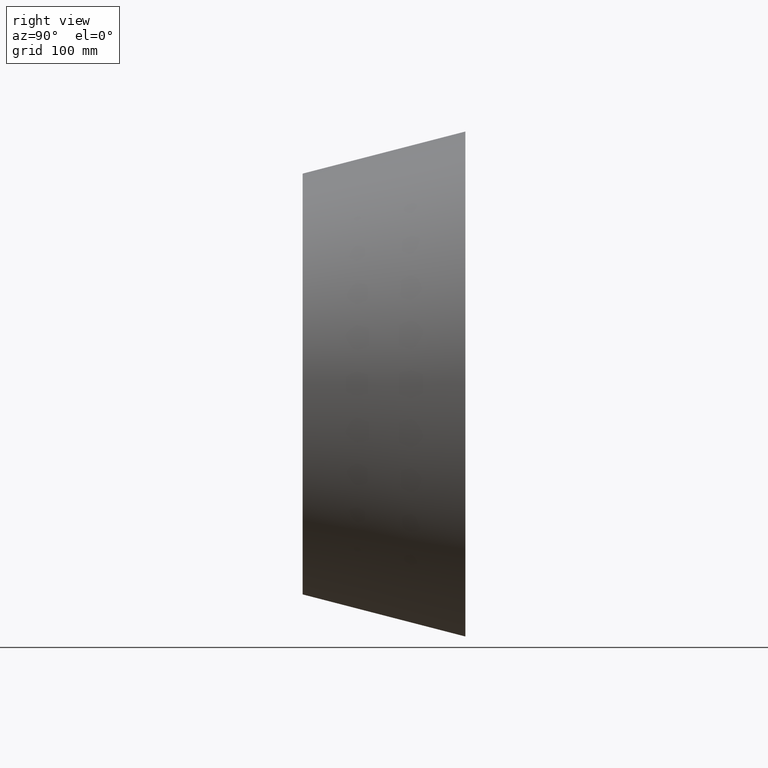
[diagram: clean part render]
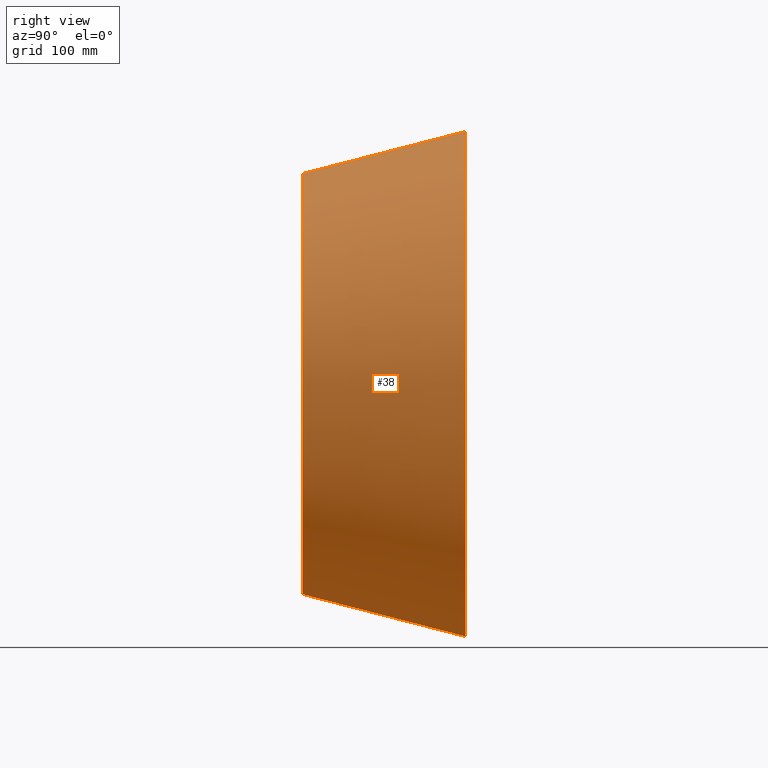
[diagram: same view with one face highlighted and labeled with its STEP entity id]
A machine part, right view. The second image highlights one B-rep face of the part: STEP entity #38.
In plain terms, the highlighted conical surface has half-angle 14.5 deg.
Its self-contained STEP definition (entity closure, byte-faithful):
#2 = EDGE_CURVE ( 'NONE', #60, #239, #303, .T. ) ;
#4 = ORIENTED_EDGE ( 'NONE', *, *, #281, .T. ) ;
#11 = AXIS2_PLACEMENT_3D ( 'NONE', #330, #200, #170 ) ;
#17 = VERTEX_POINT ( 'NONE', #246 ) ;
#18 = CARTESIAN_POINT ( 'NONE',  ( 0.0000000000000000000, 144.9999999999999400, 0.0000000000000000000 ) ) ;
#23 = CARTESIAN_POINT ( 'NONE',  ( 2.755455298081544900E-014, 144.9999999999999400, -225.0000000000000300 ) ) ;
#29 = DIRECTION ( 'NONE',  ( 3.066305214852269800E-017, 0.9681469116116011600, -0.2503828219685178500 ) ) ;
#31 = AXIS2_PLACEMENT_3D ( 'NONE', #18, #171, #39 ) ;
#32 = EDGE_LOOP ( 'NONE', ( #212, #4, #35, #292 ) ) ;
#35 = ORIENTED_EDGE ( 'NONE', *, *, #78, .T. ) ;
#38 = ADVANCED_FACE ( 'NONE', ( #183 ), #312, .T. ) ;
#39 = DIRECTION ( 'NONE',  ( 0.0000000000000000000, 0.0000000000000000000, 1.000000000000000000 ) ) ;
#40 = EDGE_CURVE ( 'NONE', #309, #60, #128, .T. ) ;
#60 = VERTEX_POINT ( 'NONE', #279 ) ;
#63 = CIRCLE ( 'NONE', #185, 225.0000000000000300 ) ;
#78 = EDGE_CURVE ( 'NONE', #17, #239, #63, .T. ) ;
#88 = CARTESIAN_POINT ( 'NONE',  ( 0.0000000000000000000, 144.9999999999999400, 225.0000000000000300 ) ) ;
#101 = VECTOR ( 'NONE', #225, 1000.000000000000200 ) ;
#114 = CARTESIAN_POINT ( 'NONE',  ( 0.0000000000000000000, 144.9999999999999400, 0.0000000000000000000 ) ) ;
#128 = CIRCLE ( 'NONE', #11, 187.5000000000000000 ) ;
#139 = DIRECTION ( 'NONE',  ( 0.0000000000000000000, 0.0000000000000000000, -1.000000000000000000 ) ) ;
#170 = DIRECTION ( 'NONE',  ( 0.0000000000000000000, 0.0000000000000000000, -1.000000000000000000 ) ) ;
#171 = DIRECTION ( 'NONE',  ( 0.0000000000000000000, 1.000000000000000000, 0.0000000000000000000 ) ) ;
#183 = FACE_OUTER_BOUND ( 'NONE', #32, .T. ) ;
#185 = AXIS2_PLACEMENT_3D ( 'NONE', #114, #261, #139 ) ;
#200 = DIRECTION ( 'NONE',  ( -0.0000000000000000000, -1.000000000000000000, -0.0000000000000000000 ) ) ;
#212 = ORIENTED_EDGE ( 'NONE', *, *, #40, .F. ) ;
#225 = DIRECTION ( 'NONE',  ( 0.0000000000000000000, 0.9681469116116011600, 0.2503828219685178500 ) ) ;
#239 = VERTEX_POINT ( 'NONE', #88 ) ;
#246 = CARTESIAN_POINT ( 'NONE',  ( 2.755455298081544900E-014, 144.9999999999999400, -225.0000000000000300 ) ) ;
#253 = CARTESIAN_POINT ( 'NONE',  ( 0.0000000000000000000, 144.9999999999999400, 225.0000000000000300 ) ) ;
#256 = CARTESIAN_POINT ( 'NONE',  ( 2.525834023241416200E-014, -2.081668171172168500E-014, -187.5000000000000000 ) ) ;
#261 = DIRECTION ( 'NONE',  ( -0.0000000000000000000, -1.000000000000000000, -0.0000000000000000000 ) ) ;
#279 = CARTESIAN_POINT ( 'NONE',  ( 0.0000000000000000000, -2.081668171172168500E-014, 187.5000000000000000 ) ) ;
#281 = EDGE_CURVE ( 'NONE', #309, #17, #328, .T. ) ;
#292 = ORIENTED_EDGE ( 'NONE', *, *, #2, .F. ) ;
#303 = LINE ( 'NONE', #253, #101 ) ;
#309 = VERTEX_POINT ( 'NONE', #256 ) ;
#312 = CONICAL_SURFACE ( 'NONE', #31, 225.0000000000000300, 0.2530756521646025900 ) ;
#314 = VECTOR ( 'NONE', #29, 1000.000000000000200 ) ;
#328 = LINE ( 'NONE', #23, #314 ) ;
#330 = CARTESIAN_POINT ( 'NONE',  ( 0.0000000000000000000, -2.081668171172168500E-014, 0.0000000000000000000 ) ) ;